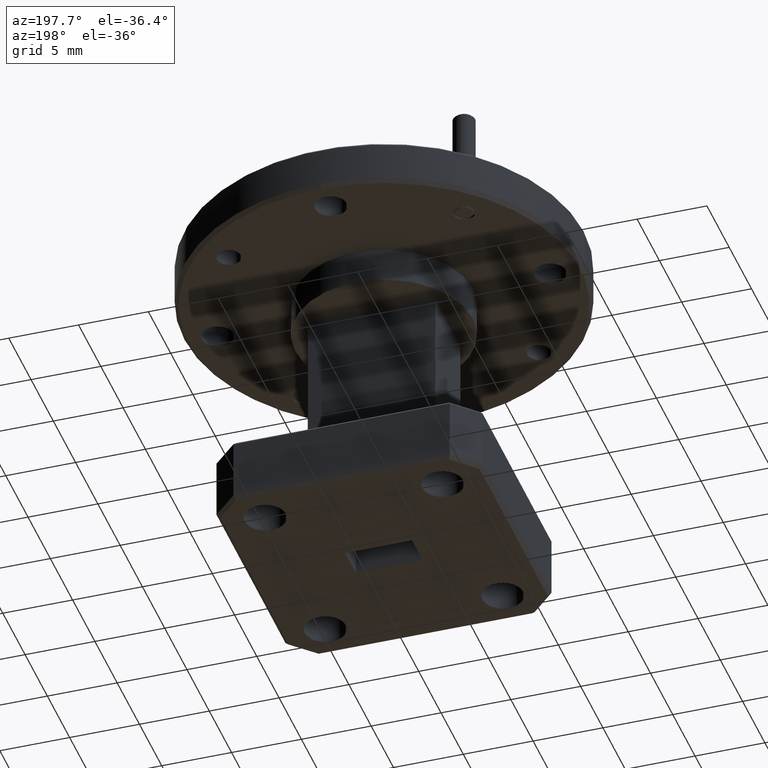
[diagram: clean part render]
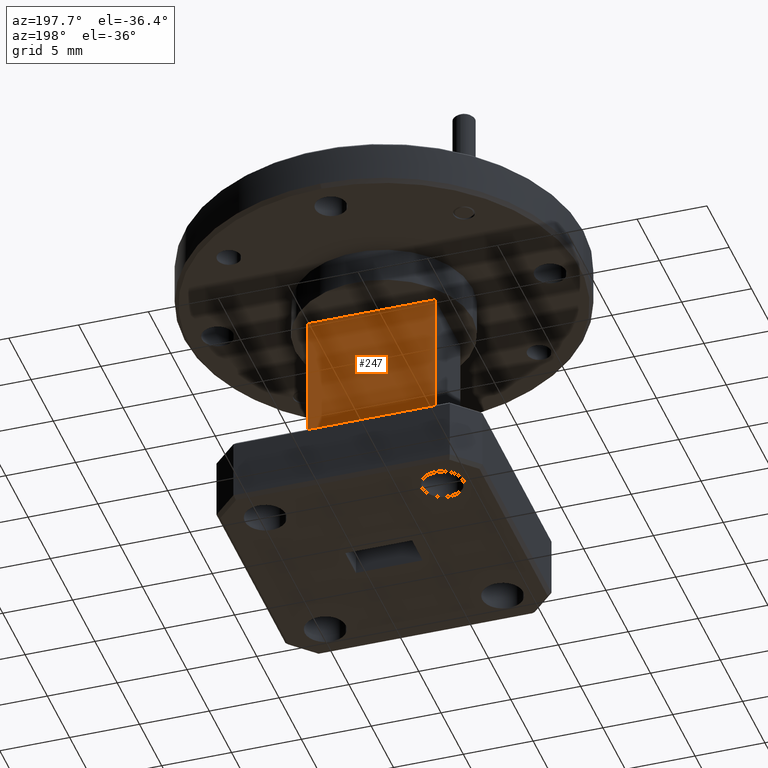
[diagram: same view with one face highlighted and labeled with its STEP entity id]
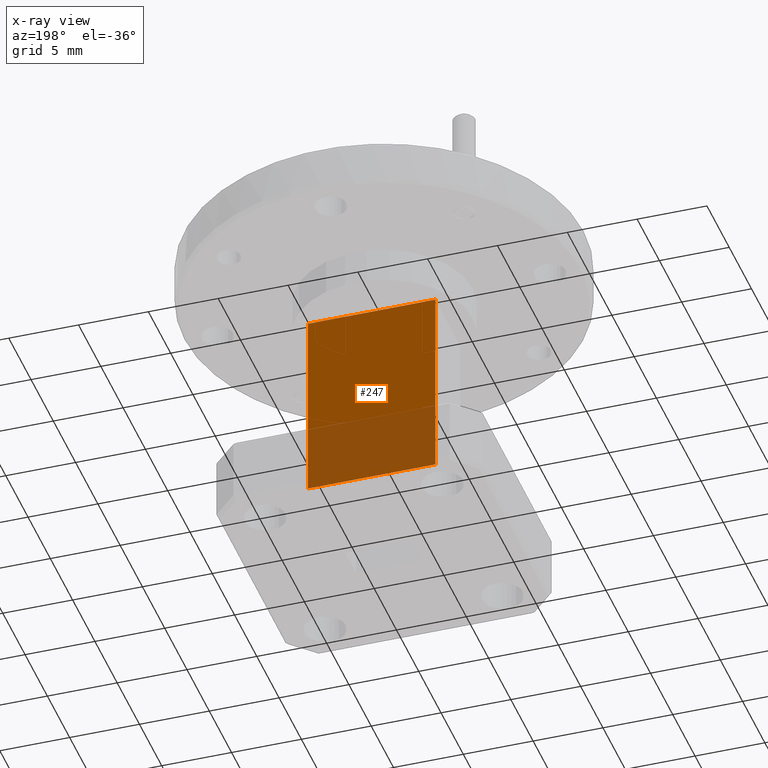
[diagram: x-ray of the same camera — body ghosted, the highlighted face saturated]
A machine part, auxiliary view. The second image highlights one B-rep face of the part: STEP entity #247.
The next image is the same camera in x-ray: the body ghosted, the highlighted face saturated — about 36% of this face is hidden behind the body in this view.
In plain terms, the highlighted planar face has unit normal (0, -1, 0).
Its self-contained STEP definition (entity closure, byte-faithful):
#126 = EDGE_CURVE ( 'NONE', #2976, #2691, #1865, .T. ) ;
#162 = DIRECTION ( 'NONE',  ( -0.0000000000000000000, 0.0000000000000000000, 1.000000000000000000 ) ) ;
#217 = LINE ( 'NONE', #2395, #2773 ) ;
#247 = ADVANCED_FACE ( 'NONE', ( #307 ), #2235, .F. ) ;
#307 = FACE_OUTER_BOUND ( 'NONE', #2348, .T. ) ;
#440 = CARTESIAN_POINT ( 'NONE',  ( -3.206395841607356400, 0.7917944780980215000, 1.468770279067069600 ) ) ;
#632 = DIRECTION ( 'NONE',  ( 0.0000000000000000000, -0.0000000000000000000, -1.000000000000000000 ) ) ;
#652 = DIRECTION ( 'NONE',  ( 1.000000000000000000, 9.485583311334247300E-017, 0.0000000000000000000 ) ) ;
#1071 = CARTESIAN_POINT ( 'NONE',  ( -3.026395841607356600, 0.7917944780980215000, 0.9187702790670693200 ) ) ;
#1154 = ORIENTED_EDGE ( 'NONE', *, *, #2397, .F. ) ;
#1165 = VECTOR ( 'NONE', #2201, 39.37007874015748100 ) ;
#1253 = DIRECTION ( 'NONE',  ( 1.000000000000000000, 9.485583311334247300E-017, 0.0000000000000000000 ) ) ;
#1260 = DIRECTION ( 'NONE',  ( 9.485583311334247300E-017, -1.000000000000000000, 0.0000000000000000000 ) ) ;
#1279 = ORIENTED_EDGE ( 'NONE', *, *, #126, .F. ) ;
#1299 = AXIS2_PLACEMENT_3D ( 'NONE', #2014, #1260, #1253 ) ;
#1343 = ORIENTED_EDGE ( 'NONE', *, *, #2358, .F. ) ;
#1353 = VERTEX_POINT ( 'NONE', #2435 ) ;
#1393 = VERTEX_POINT ( 'NONE', #1470 ) ;
#1470 = CARTESIAN_POINT ( 'NONE',  ( -3.026395841607356600, 0.7917944780980215000, 1.468770279067069600 ) ) ;
#1579 = VECTOR ( 'NONE', #162, 39.37007874015748100 ) ;
#1865 = LINE ( 'NONE', #2638, #2749 ) ;
#2014 = CARTESIAN_POINT ( 'NONE',  ( -3.026395841607356600, 0.7917944780980216100, 1.468770279067069600 ) ) ;
#2201 = DIRECTION ( 'NONE',  ( 1.000000000000000000, 0.0000000000000000000, -0.0000000000000000000 ) ) ;
#2228 = LINE ( 'NONE', #2878, #1579 ) ;
#2235 = PLANE ( 'NONE',  #1299 ) ;
#2348 = EDGE_LOOP ( 'NONE', ( #1154, #3048, #1343, #1279 ) ) ;
#2358 = EDGE_CURVE ( 'NONE', #2691, #1393, #2228, .T. ) ;
#2395 = CARTESIAN_POINT ( 'NONE',  ( -3.386395841607356100, 0.7917944780980216100, 1.468770279067069600 ) ) ;
#2397 = EDGE_CURVE ( 'NONE', #1353, #2976, #217, .T. ) ;
#2435 = CARTESIAN_POINT ( 'NONE',  ( -3.386395841607356100, 0.7917944780980215000, 1.468770279067069600 ) ) ;
#2594 = LINE ( 'NONE', #440, #1165 ) ;
#2638 = CARTESIAN_POINT ( 'NONE',  ( -3.026395841607356600, 0.7917944780980216100, 0.9187702790670693200 ) ) ;
#2691 = VERTEX_POINT ( 'NONE', #1071 ) ;
#2749 = VECTOR ( 'NONE', #652, 39.37007874015748100 ) ;
#2773 = VECTOR ( 'NONE', #632, 39.37007874015748100 ) ;
#2878 = CARTESIAN_POINT ( 'NONE',  ( -3.026395841607356600, 0.7917944780980216100, 1.468770279067069600 ) ) ;
#2885 = CARTESIAN_POINT ( 'NONE',  ( -3.386395841607356100, 0.7917944780980215000, 0.9187702790670693200 ) ) ;
#2976 = VERTEX_POINT ( 'NONE', #2885 ) ;
#2990 = EDGE_CURVE ( 'NONE', #1353, #1393, #2594, .T. ) ;
#3048 = ORIENTED_EDGE ( 'NONE', *, *, #2990, .T. ) ;